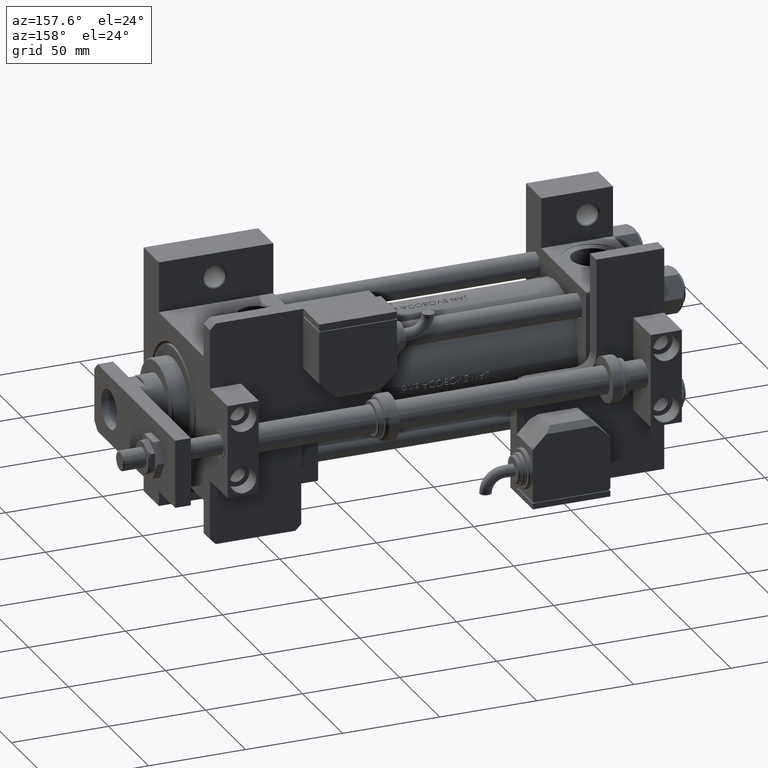
[diagram: clean part render]
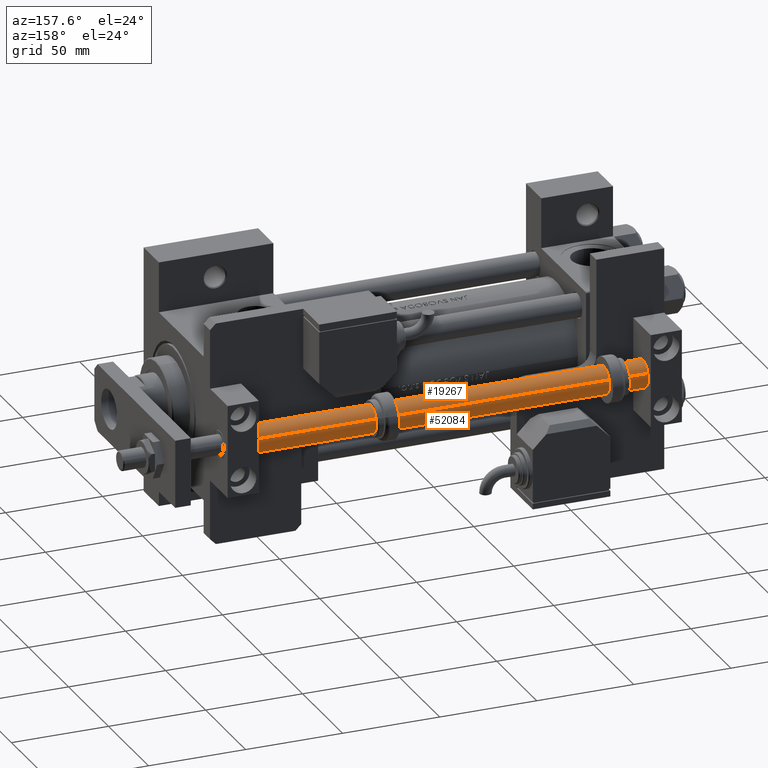
[diagram: same view with one multi-face feature highlighted, each face labeled with its STEP entity id]
A machine part, auxiliary view. The highlighted faces form ONE feature: a constant-radius fillet chain: 2 tangent blend faces with common blend radius 7 mm. The faces share edges in the B-rep.
Their STEP definitions:
[1] entity #19267 (Cylinder):
#1414 = LINE ( 'NONE', #6235, #5694 ) ;
#3444 = ORIENTED_EDGE ( 'NONE', *, *, #31371, .F. ) ;
#3900 = ORIENTED_EDGE ( 'NONE', *, *, #49276, .T. ) ;
#4792 = AXIS2_PLACEMENT_3D ( 'NONE', #44413, #36066, #47652 ) ;
#5694 = VECTOR ( 'NONE', #34541, 1000.000000000000000 ) ;
#6235 = CARTESIAN_POINT ( 'NONE',  ( -7.000000000000000000, 0.000000000000000000, 234.0000000000000000 ) ) ;
#6351 = CARTESIAN_POINT ( 'NONE',  ( 7.000000000000000000, 8.572527594031473190E-16, 234.0000000000000000 ) ) ;
#8829 = CARTESIAN_POINT ( 'NONE',  ( 7.000000000000000000, 8.572527594031473190E-16, 234.0000000000000000 ) ) ;
#12749 = VERTEX_POINT ( 'NONE', #14307 ) ;
#12847 = DIRECTION ( 'NONE',  ( 0.000000000000000000, 0.000000000000000000, 1.000000000000000000 ) ) ;
#13641 = VERTEX_POINT ( 'NONE', #27885 ) ;
#14307 = CARTESIAN_POINT ( 'NONE',  ( 7.000000000000000000, 8.572527594031473190E-16, 0.3000000000000224709 ) ) ;
#14611 = CARTESIAN_POINT ( 'NONE',  ( 0.000000000000000000, 0.000000000000000000, 234.0000000000000000 ) ) ;
#14613 = VERTEX_POINT ( 'NONE', #52385 ) ;
#17966 = DIRECTION ( 'NONE',  ( 1.000000000000000000, 0.000000000000000000, 0.000000000000000000 ) ) ;
#18396 = FACE_OUTER_BOUND ( 'NONE', #26302, .T. ) ;
#19267 = ADVANCED_FACE ( 'NONE', ( #18396 ), #46954, .T. ) ;
#19788 = DIRECTION ( 'NONE',  ( -0.000000000000000000, -0.000000000000000000, -1.000000000000000000 ) ) ;
#21906 = DIRECTION ( 'NONE',  ( -1.000000000000000000, 0.000000000000000000, 0.000000000000000000 ) ) ;
#22729 = AXIS2_PLACEMENT_3D ( 'NONE', #29795, #12847, #17966 ) ;
#22927 = VECTOR ( 'NONE', #19788, 1000.000000000000000 ) ;
#26102 = ORIENTED_EDGE ( 'NONE', *, *, #38604, .T. ) ;
#26302 = EDGE_LOOP ( 'NONE', ( #43550, #3444, #3900, #26102 ) ) ;
#27885 = CARTESIAN_POINT ( 'NONE',  ( -7.000000000000000000, 0.000000000000000000, 0.3000000000000224709 ) ) ;
#29795 = CARTESIAN_POINT ( 'NONE',  ( 0.000000000000000000, 0.000000000000000000, 234.0000000000000000 ) ) ;
#30013 = VERTEX_POINT ( 'NONE', #8829 ) ;
#30450 = CIRCLE ( 'NONE', #22729, 7.000000000000000000 ) ;
#31371 = EDGE_CURVE ( 'NONE', #14613, #30013, #30450, .T. ) ;
#31452 = CIRCLE ( 'NONE', #4792, 7.000000000000000000 ) ;
#32783 = AXIS2_PLACEMENT_3D ( 'NONE', #14611, #38064, #21906 ) ;
#34541 = DIRECTION ( 'NONE',  ( -0.000000000000000000, -0.000000000000000000, -1.000000000000000000 ) ) ;
#36066 = DIRECTION ( 'NONE',  ( -0.000000000000000000, -0.000000000000000000, 1.000000000000000000 ) ) ;
#38064 = DIRECTION ( 'NONE',  ( -0.000000000000000000, -0.000000000000000000, -1.000000000000000000 ) ) ;
#38604 = EDGE_CURVE ( 'NONE', #13641, #12749, #31452, .T. ) ;
#40251 = LINE ( 'NONE', #6351, #22927 ) ;
#43550 = ORIENTED_EDGE ( 'NONE', *, *, #53301, .F. ) ;
#44413 = CARTESIAN_POINT ( 'NONE',  ( 0.000000000000000000, 0.000000000000000000, 0.3000000000000224709 ) ) ;
#46954 = CYLINDRICAL_SURFACE ( 'NONE', #32783, 7.000000000000000000 ) ;
#47652 = DIRECTION ( 'NONE',  ( 1.000000000000000000, 0.000000000000000000, 0.000000000000000000 ) ) ;
#49276 = EDGE_CURVE ( 'NONE', #14613, #13641, #1414, .T. ) ;
#52385 = CARTESIAN_POINT ( 'NONE',  ( -7.000000000000000000, 0.000000000000000000, 234.0000000000000000 ) ) ;
#53301 = EDGE_CURVE ( 'NONE', #30013, #12749, #40251, .T. ) ;
[2] entity #52084 (Cylinder):
#158 = DIRECTION ( 'NONE',  ( -1.000000000000000000, 0.000000000000000000, 0.000000000000000000 ) ) ;
#1414 = LINE ( 'NONE', #6235, #5694 ) ;
#3454 = EDGE_CURVE ( 'NONE', #12749, #13641, #26242, .T. ) ;
#4934 = CARTESIAN_POINT ( 'NONE',  ( 0.000000000000000000, 0.000000000000000000, 0.3000000000000224709 ) ) ;
#5694 = VECTOR ( 'NONE', #34541, 1000.000000000000000 ) ;
#6235 = CARTESIAN_POINT ( 'NONE',  ( -7.000000000000000000, 0.000000000000000000, 234.0000000000000000 ) ) ;
#6351 = CARTESIAN_POINT ( 'NONE',  ( 7.000000000000000000, 8.572527594031473190E-16, 234.0000000000000000 ) ) ;
#8829 = CARTESIAN_POINT ( 'NONE',  ( 7.000000000000000000, 8.572527594031473190E-16, 234.0000000000000000 ) ) ;
#9008 = CARTESIAN_POINT ( 'NONE',  ( 0.000000000000000000, 0.000000000000000000, 234.0000000000000000 ) ) ;
#12749 = VERTEX_POINT ( 'NONE', #14307 ) ;
#13641 = VERTEX_POINT ( 'NONE', #27885 ) ;
#14307 = CARTESIAN_POINT ( 'NONE',  ( 7.000000000000000000, 8.572527594031473190E-16, 0.3000000000000224709 ) ) ;
#14613 = VERTEX_POINT ( 'NONE', #52385 ) ;
#16338 = FACE_OUTER_BOUND ( 'NONE', #24641, .T. ) ;
#16566 = DIRECTION ( 'NONE',  ( 1.000000000000000000, 0.000000000000000000, 0.000000000000000000 ) ) ;
#16828 = ORIENTED_EDGE ( 'NONE', *, *, #53301, .T. ) ;
#19788 = DIRECTION ( 'NONE',  ( -0.000000000000000000, -0.000000000000000000, -1.000000000000000000 ) ) ;
#22927 = VECTOR ( 'NONE', #19788, 1000.000000000000000 ) ;
#23086 = CARTESIAN_POINT ( 'NONE',  ( 0.000000000000000000, 0.000000000000000000, 234.0000000000000000 ) ) ;
#23306 = ORIENTED_EDGE ( 'NONE', *, *, #49276, .F. ) ;
#24641 = EDGE_LOOP ( 'NONE', ( #29699, #16828, #26568, #23306 ) ) ;
#24655 = EDGE_CURVE ( 'NONE', #30013, #14613, #41391, .T. ) ;
#25467 = DIRECTION ( 'NONE',  ( -0.000000000000000000, -0.000000000000000000, -1.000000000000000000 ) ) ;
#26242 = CIRCLE ( 'NONE', #28000, 7.000000000000000000 ) ;
#26568 = ORIENTED_EDGE ( 'NONE', *, *, #3454, .T. ) ;
#27885 = CARTESIAN_POINT ( 'NONE',  ( -7.000000000000000000, 0.000000000000000000, 0.3000000000000224709 ) ) ;
#28000 = AXIS2_PLACEMENT_3D ( 'NONE', #4934, #49415, #16566 ) ;
#28888 = AXIS2_PLACEMENT_3D ( 'NONE', #9008, #25467, #158 ) ;
#29699 = ORIENTED_EDGE ( 'NONE', *, *, #24655, .F. ) ;
#30013 = VERTEX_POINT ( 'NONE', #8829 ) ;
#31036 = AXIS2_PLACEMENT_3D ( 'NONE', #23086, #40043, #51637 ) ;
#34541 = DIRECTION ( 'NONE',  ( -0.000000000000000000, -0.000000000000000000, -1.000000000000000000 ) ) ;
#40043 = DIRECTION ( 'NONE',  ( 0.000000000000000000, 0.000000000000000000, 1.000000000000000000 ) ) ;
#40251 = LINE ( 'NONE', #6351, #22927 ) ;
#41391 = CIRCLE ( 'NONE', #31036, 7.000000000000000000 ) ;
#49276 = EDGE_CURVE ( 'NONE', #14613, #13641, #1414, .T. ) ;
#49415 = DIRECTION ( 'NONE',  ( -0.000000000000000000, -0.000000000000000000, 1.000000000000000000 ) ) ;
#49459 = CYLINDRICAL_SURFACE ( 'NONE', #28888, 7.000000000000000000 ) ;
#51637 = DIRECTION ( 'NONE',  ( 1.000000000000000000, 0.000000000000000000, 0.000000000000000000 ) ) ;
#52084 = ADVANCED_FACE ( 'NONE', ( #16338 ), #49459, .T. ) ;
#52385 = CARTESIAN_POINT ( 'NONE',  ( -7.000000000000000000, 0.000000000000000000, 234.0000000000000000 ) ) ;
#53301 = EDGE_CURVE ( 'NONE', #30013, #12749, #40251, .T. ) ;